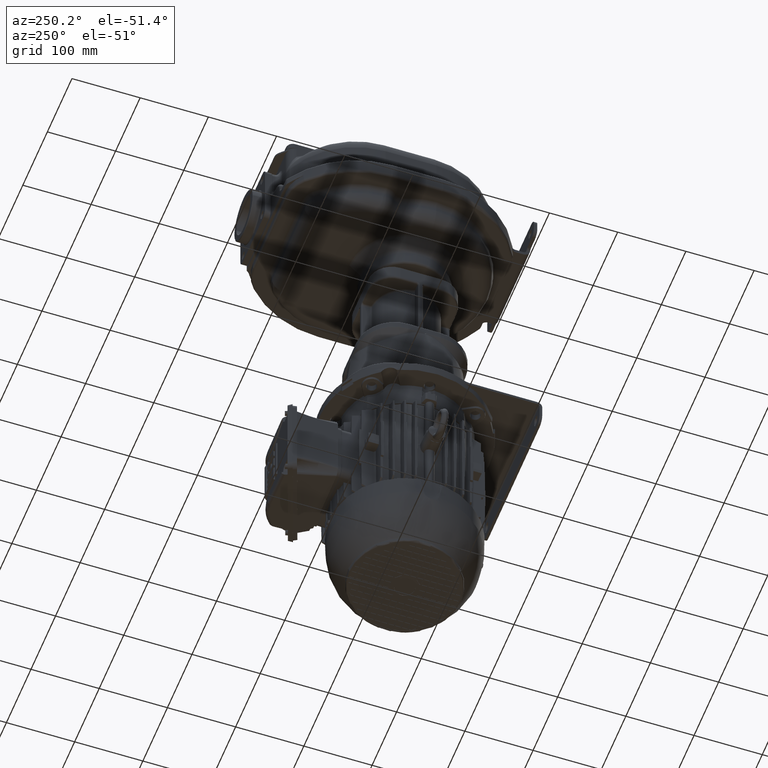
[diagram: clean part render]
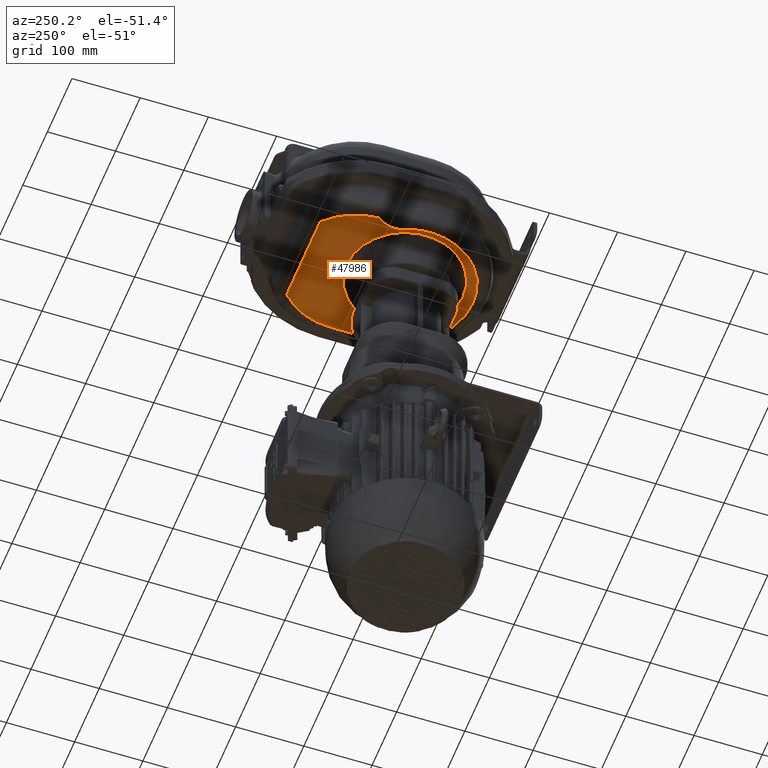
[diagram: same view with one face highlighted and labeled with its STEP entity id]
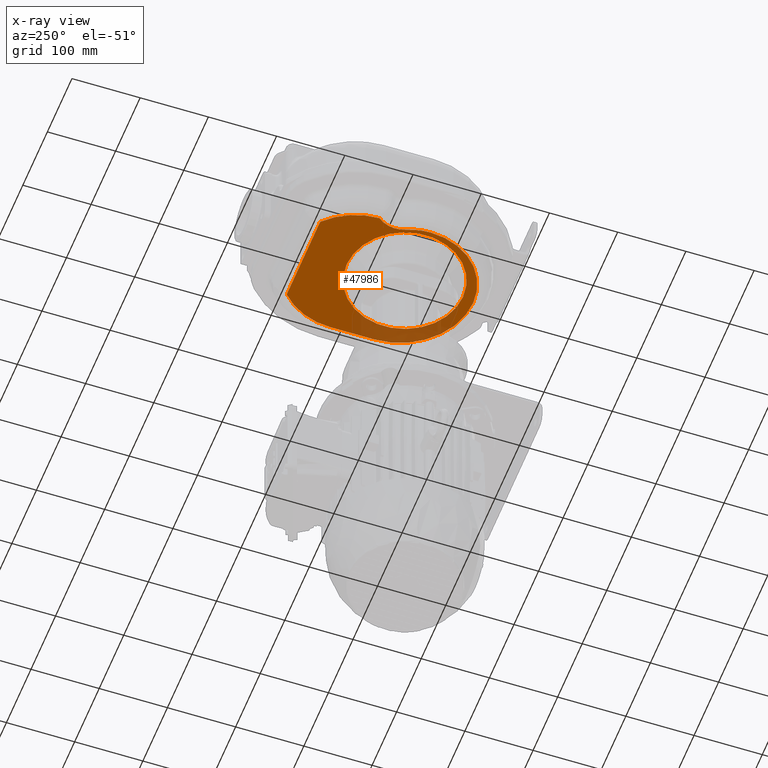
[diagram: x-ray of the same camera — body ghosted, the highlighted face saturated]
A machine part, auxiliary view. The second image highlights one B-rep face of the part: STEP entity #47986.
The next image is the same camera in x-ray: the body ghosted, the highlighted face saturated — about 18% of this face is hidden behind the body in this view.
In plain terms, the highlighted planar face has unit normal (0, 0, -1).
Its self-contained STEP definition (entity closure, byte-faithful):
#2695=CARTESIAN_POINT('',(1.E1,2.29E2,-7.45E1));
#2696=DIRECTION('',(0.E0,0.E0,-1.E0));
#2697=DIRECTION('',(-9.999446808968E-1,1.051832430719E-2,0.E0));
#2698=AXIS2_PLACEMENT_3D('',#2695,#2696,#2697);
#2700=CARTESIAN_POINT('',(-1.222196018903E2,2.038729468385E2,-7.45E1));
#2701=DIRECTION('',(0.E0,0.E0,1.E0));
#2702=DIRECTION('',(9.229889912622E-1,-3.848263530592E-1,0.E0));
#2703=AXIS2_PLACEMENT_3D('',#2700,#2701,#2702);
#2705=CARTESIAN_POINT('',(-5.E0,1.55E2,-7.45E1));
#2706=DIRECTION('',(0.E0,0.E0,-1.E0));
#2707=DIRECTION('',(-1.E0,0.E0,0.E0));
#2708=AXIS2_PLACEMENT_3D('',#2705,#2706,#2707);
#2710=CARTESIAN_POINT('',(5.E0,1.55E2,-7.45E1));
#2711=DIRECTION('',(0.E0,0.E0,-1.E0));
#2712=DIRECTION('',(0.E0,-1.E0,0.E0));
#2713=AXIS2_PLACEMENT_3D('',#2710,#2711,#2712);
#2715=CARTESIAN_POINT('',(5.E0,1.65E2,-7.45E1));
#2716=DIRECTION('',(0.E0,0.E0,-1.E0));
#2717=DIRECTION('',(1.E0,0.E0,0.E0));
#2718=AXIS2_PLACEMENT_3D('',#2715,#2716,#2717);
#2720=DIRECTION('',(0.E0,-1.E0,0.E0));
#2721=VECTOR('',#2720,6.4E1);
#2722=CARTESIAN_POINT('',(1.12E2,2.29E2,-7.45E1));
#2723=LINE('',#2722,#2721);
#2724=CARTESIAN_POINT('',(1.E1,2.29E2,-7.45E1));
#2725=DIRECTION('',(0.E0,0.E0,-1.E0));
#2726=DIRECTION('',(6.754849897899E-1,7.373737373737E-1,0.E0));
#2727=AXIS2_PLACEMENT_3D('',#2724,#2725,#2726);
#2729=CARTESIAN_POINT('',(7.687301398920E1,3.02E2,-7.45E1));
#2730=DIRECTION('',(0.E0,0.E0,-1.E0));
#2731=DIRECTION('',(0.E0,1.E0,0.E0));
#2732=AXIS2_PLACEMENT_3D('',#2729,#2730,#2731);
#2734=DIRECTION('',(1.E0,0.E0,0.E0));
#2735=VECTOR('',#2734,1.337460279784E2);
#2736=CARTESIAN_POINT('',(-5.687301398920E1,3.05E2,-7.45E1));
#2737=LINE('',#2736,#2735);
#2738=CARTESIAN_POINT('',(-5.687301398920E1,3.02E2,-7.45E1));
#2739=DIRECTION('',(0.E0,0.E0,-1.E0));
#2740=DIRECTION('',(-6.754849897900E-1,7.373737373737E-1,0.E0));
#2741=AXIS2_PLACEMENT_3D('',#2738,#2739,#2740);
#2743=CARTESIAN_POINT('',(0.E0,1.6E2,-7.45E1));
#2744=DIRECTION('',(0.E0,0.E0,-1.E0));
#2745=DIRECTION('',(0.E0,1.E0,0.E0));
#2746=AXIS2_PLACEMENT_3D('',#2743,#2744,#2745);
#2748=CARTESIAN_POINT('',(0.E0,1.6E2,-7.45E1));
#2749=DIRECTION('',(0.E0,0.E0,-1.E0));
#2750=DIRECTION('',(0.E0,-1.E0,0.E0));
#2751=AXIS2_PLACEMENT_3D('',#2748,#2749,#2750);
#2753=CARTESIAN_POINT('',(-9.199435689668E1,2.300728503084E2,-7.45E1));
#37443=VERTEX_POINT('',#2753);
#37446=CARTESIAN_POINT('',(2.743897526979E-14,2.453137084990E2,-7.45E1));
#37447=CARTESIAN_POINT('',(-1.699107151259E-14,7.468629150102E1,-7.45E1));
#37448=VERTEX_POINT('',#37446);
#37449=VERTEX_POINT('',#37447);
#37462=CARTESIAN_POINT('',(-5.889946895857E1,3.042121212121E2,-7.45E1));
#37463=VERTEX_POINT('',#37462);
#37466=CARTESIAN_POINT('',(-5.687301398920E1,3.05E2,-7.45E1));
#37467=VERTEX_POINT('',#37466);
#37470=CARTESIAN_POINT('',(7.687301398920E1,3.05E2,-7.45E1));
#37471=VERTEX_POINT('',#37470);
#37474=CARTESIAN_POINT('',(7.889946895857E1,3.042121212121E2,-7.45E1));
#37475=VERTEX_POINT('',#37474);
#37478=CARTESIAN_POINT('',(1.12E2,2.29E2,-7.45E1));
#37479=VERTEX_POINT('',#37478);
#37482=CARTESIAN_POINT('',(1.12E2,1.65E2,-7.45E1));
#37483=VERTEX_POINT('',#37482);
#37486=CARTESIAN_POINT('',(5.E0,5.8E1,-7.45E1));
#37487=VERTEX_POINT('',#37486);
#37490=CARTESIAN_POINT('',(-9.2E1,1.55E2,-7.45E1));
#37491=VERTEX_POINT('',#37490);
#37494=CARTESIAN_POINT('',(-8.530004223981E1,1.884798927162E2,-7.45E1));
#37495=VERTEX_POINT('',#37494);
#47954=CARTESIAN_POINT('',(0.E0,1.6E2,-7.45E1));
#47955=DIRECTION('',(0.E0,0.E0,-1.E0));
#47956=DIRECTION('',(-1.E0,0.E0,0.E0));
#47957=AXIS2_PLACEMENT_3D('',#47954,#47955,#47956);
#47958=PLANE('',#47957);
#47960=ORIENTED_EDGE('',*,*,#47959,.F.);
#47962=ORIENTED_EDGE('',*,*,#47961,.F.);
#47964=ORIENTED_EDGE('',*,*,#47963,.F.);
#47965=ORIENTED_EDGE('',*,*,#47944,.F.);
#47967=ORIENTED_EDGE('',*,*,#47966,.F.);
#47969=ORIENTED_EDGE('',*,*,#47968,.F.);
#47971=ORIENTED_EDGE('',*,*,#47970,.F.);
#47973=ORIENTED_EDGE('',*,*,#47972,.F.);
#47975=ORIENTED_EDGE('',*,*,#47974,.F.);
#47977=ORIENTED_EDGE('',*,*,#47976,.F.);
#47978=EDGE_LOOP('',(#47960,#47962,#47964,#47965,#47967,#47969,#47971,#47973,
#47975,#47977));
#47979=FACE_OUTER_BOUND('',#47978,.F.);
#47981=ORIENTED_EDGE('',*,*,#47980,.T.);
#47983=ORIENTED_EDGE('',*,*,#47982,.T.);
#47984=EDGE_LOOP('',(#47981,#47983));
#47985=FACE_BOUND('',#47984,.F.);
#47986=ADVANCED_FACE('',(#47979,#47985),#47958,.T.);
#2699=CIRCLE('',#2698,1.02E2);
#2704=CIRCLE('',#2703,4.E1);
#2709=CIRCLE('',#2708,8.7E1);
#2714=CIRCLE('',#2713,9.7E1);
#2719=CIRCLE('',#2718,1.07E2);
#2728=CIRCLE('',#2727,1.02E2);
#2733=CIRCLE('',#2732,3.E0);
#2742=CIRCLE('',#2741,3.E0);
#2747=CIRCLE('',#2746,8.531370849898E1);
#2752=CIRCLE('',#2751,8.531370849898E1);
#47944=EDGE_CURVE('',#37487,#37491,#2714,.T.);
#47959=EDGE_CURVE('',#37443,#37463,#2699,.T.);
#47961=EDGE_CURVE('',#37495,#37443,#2704,.T.);
#47963=EDGE_CURVE('',#37491,#37495,#2709,.T.);
#47966=EDGE_CURVE('',#37483,#37487,#2719,.T.);
#47968=EDGE_CURVE('',#37479,#37483,#2723,.T.);
#47970=EDGE_CURVE('',#37475,#37479,#2728,.T.);
#47972=EDGE_CURVE('',#37471,#37475,#2733,.T.);
#47974=EDGE_CURVE('',#37467,#37471,#2737,.T.);
#47976=EDGE_CURVE('',#37463,#37467,#2742,.T.);
#47980=EDGE_CURVE('',#37448,#37449,#2747,.T.);
#47982=EDGE_CURVE('',#37449,#37448,#2752,.T.);